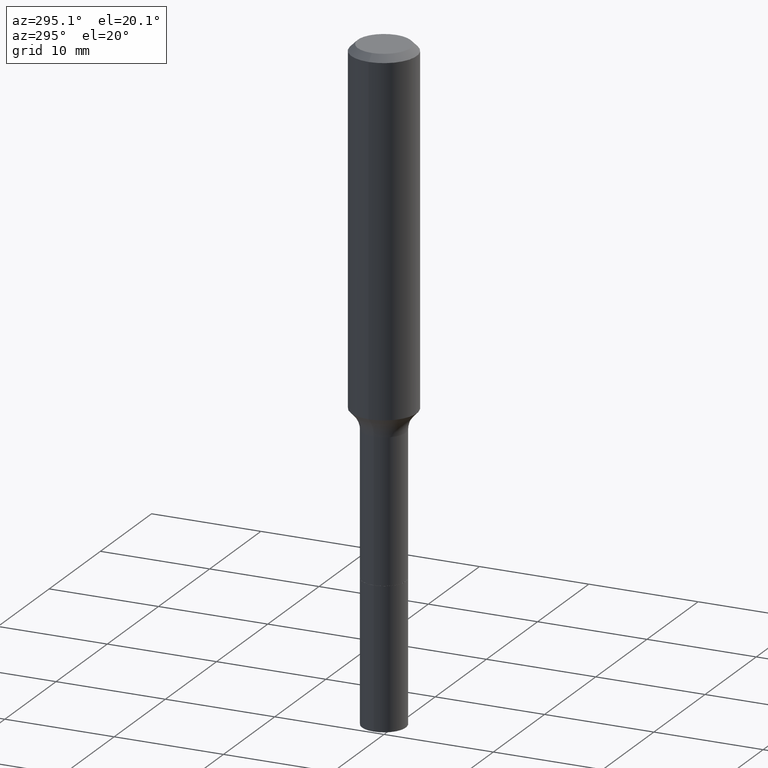
[diagram: clean part render]
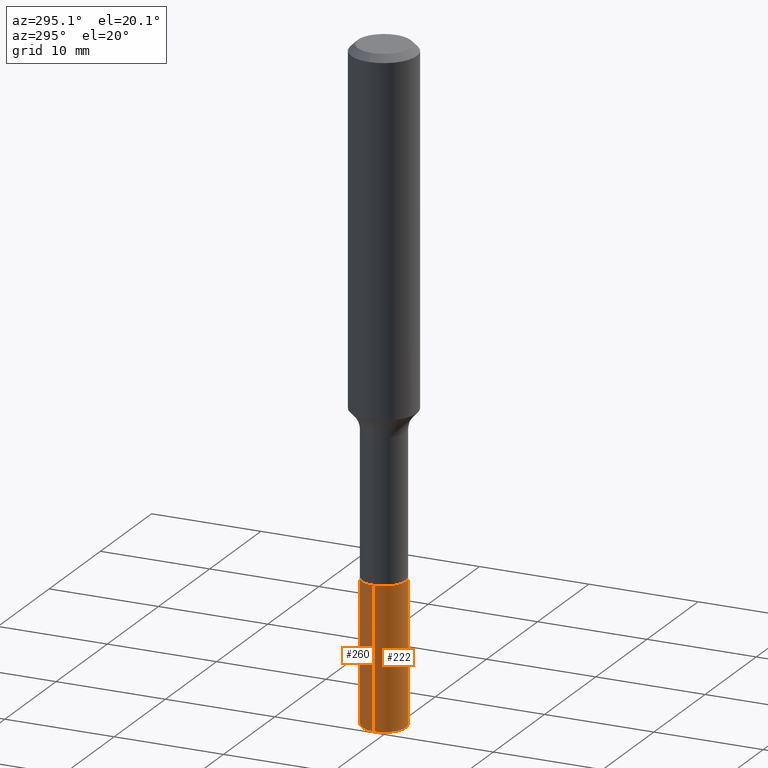
[diagram: same view with one multi-face feature highlighted, each face labeled with its STEP entity id]
A machine part, auxiliary view. The highlighted faces form ONE feature: a constant-radius fillet chain: 2 tangent blend faces with common blend radius 2.0003 mm. The faces share edges in the B-rep.
Their STEP definitions:
[1] entity #222 (Cylinder):
#7 = DIRECTION ( 'NONE',  ( -2.445468806185136877E-29, 3.491481338843145188E-15, 1.000000000000000000 ) ) ;
#42 = DIRECTION ( 'NONE',  ( -2.445468806185136597E-29, 3.491481338843145583E-15, 1.000000000000000000 ) ) ;
#48 = DIRECTION ( 'NONE',  ( -2.445468806185136877E-29, 3.491481338843145188E-15, 1.000000000000000000 ) ) ;
#50 = CARTESIAN_POINT ( 'NONE',  ( 0.07875000000000008382, -7.023813009350755138E-15, -1.854200000000000070 ) ) ;
#62 = EDGE_CURVE ( 'NONE', #372, #177, #405, .T. ) ;
#116 = DIRECTION ( 'NONE',  ( -2.445468806185136597E-29, 3.491481338843145583E-15, 1.000000000000000000 ) ) ;
#125 = LINE ( 'NONE', #50, #431 ) ;
#130 = AXIS2_PLACEMENT_3D ( 'NONE', #273, #116, #357 ) ;
#141 = ORIENTED_EDGE ( 'NONE', *, *, #62, .T. ) ;
#155 = FACE_OUTER_BOUND ( 'NONE', #221, .T. ) ;
#177 = VERTEX_POINT ( 'NONE', #303 ) ;
#207 = LINE ( 'NONE', #249, #270 ) ;
#213 = CARTESIAN_POINT ( 'NONE',  ( -0.07875000000000000056, -6.801188554138039935E-15, -1.854200000000000070 ) ) ;
#221 = EDGE_LOOP ( 'NONE', ( #379, #141, #376, #261 ) ) ;
#222 = ADVANCED_FACE ( 'NONE', ( #155 ), #350, .T. ) ;
#239 = DIRECTION ( 'NONE',  ( -2.445468806185136597E-29, 3.491481338843145583E-15, 1.000000000000000000 ) ) ;
#249 = CARTESIAN_POINT ( 'NONE',  ( -0.07875000000000008382, -5.914352294071881412E-15, -1.854200000000000070 ) ) ;
#261 = ORIENTED_EDGE ( 'NONE', *, *, #450, .F. ) ;
#270 = VECTOR ( 'NONE', #7, 39.37007874015748143 ) ;
#273 = CARTESIAN_POINT ( 'NONE',  ( 5.776686413970529753E-29, -8.247577218615279626E-15, -2.362200000000000077 ) ) ;
#283 = CARTESIAN_POINT ( 'NONE',  ( -0.07875000000000015321, -6.801188554138039146E-15, -2.362200000000000077 ) ) ;
#301 = VERTEX_POINT ( 'NONE', #489 ) ;
#303 = CARTESIAN_POINT ( 'NONE',  ( 0.07875000000000015321, -8.797485529483074550E-15, -2.362200000000000077 ) ) ;
#340 = CARTESIAN_POINT ( 'NONE',  ( 4.534388260428479994E-29, -6.473904698482961003E-15, -1.854200000000000070 ) ) ;
#350 = CYLINDRICAL_SURFACE ( 'NONE', #366, 0.07875000000000008382 ) ;
#354 = CARTESIAN_POINT ( 'NONE',  ( 4.534388260428479994E-29, -6.473904698482961003E-15, -1.854200000000000070 ) ) ;
#357 = DIRECTION ( 'NONE',  ( 1.000000000000000000, -6.982962677686272233E-15, 0.000000000000000000 ) ) ;
#365 = EDGE_CURVE ( 'NONE', #177, #301, #125, .T. ) ;
#366 = AXIS2_PLACEMENT_3D ( 'NONE', #340, #42, #507 ) ;
#372 = VERTEX_POINT ( 'NONE', #283 ) ;
#376 = ORIENTED_EDGE ( 'NONE', *, *, #365, .T. ) ;
#379 = ORIENTED_EDGE ( 'NONE', *, *, #386, .F. ) ;
#386 = EDGE_CURVE ( 'NONE', #372, #471, #207, .T. ) ;
#394 = DIRECTION ( 'NONE',  ( 1.000000000000000000, -6.982962677686261977E-15, 0.000000000000000000 ) ) ;
#404 = AXIS2_PLACEMENT_3D ( 'NONE', #354, #239, #394 ) ;
#405 = CIRCLE ( 'NONE', #130, 0.07875000000000015321 ) ;
#412 = CIRCLE ( 'NONE', #404, 0.07875000000000000056 ) ;
#431 = VECTOR ( 'NONE', #48, 39.37007874015748143 ) ;
#450 = EDGE_CURVE ( 'NONE', #471, #301, #412, .T. ) ;
#471 = VERTEX_POINT ( 'NONE', #213 ) ;
#489 = CARTESIAN_POINT ( 'NONE',  ( 0.07875000000000000056, -7.023813009350754349E-15, -1.854200000000000070 ) ) ;
#507 = DIRECTION ( 'NONE',  ( 1.000000000000000000, -6.982962677686267499E-15, 0.000000000000000000 ) ) ;
[2] entity #260 (Cylinder):
#7 = DIRECTION ( 'NONE',  ( -2.445468806185136877E-29, 3.491481338843145188E-15, 1.000000000000000000 ) ) ;
#12 = CARTESIAN_POINT ( 'NONE',  ( 5.776686413970529753E-29, -8.247577218615279626E-15, -2.362200000000000077 ) ) ;
#48 = DIRECTION ( 'NONE',  ( -2.445468806185136877E-29, 3.491481338843145188E-15, 1.000000000000000000 ) ) ;
#50 = CARTESIAN_POINT ( 'NONE',  ( 0.07875000000000008382, -7.023813009350755138E-15, -1.854200000000000070 ) ) ;
#60 = ORIENTED_EDGE ( 'NONE', *, *, #386, .T. ) ;
#87 = DIRECTION ( 'NONE',  ( 1.000000000000000000, -6.982962677686261977E-15, 0.000000000000000000 ) ) ;
#104 = EDGE_CURVE ( 'NONE', #177, #372, #200, .T. ) ;
#119 = EDGE_LOOP ( 'NONE', ( #501, #60, #238, #300 ) ) ;
#125 = LINE ( 'NONE', #50, #431 ) ;
#177 = VERTEX_POINT ( 'NONE', #303 ) ;
#200 = CIRCLE ( 'NONE', #296, 0.07875000000000015321 ) ;
#207 = LINE ( 'NONE', #249, #270 ) ;
#208 = DIRECTION ( 'NONE',  ( -2.445468806185136597E-29, 3.491481338843145583E-15, 1.000000000000000000 ) ) ;
#211 = DIRECTION ( 'NONE',  ( 1.000000000000000000, -6.982962677686267499E-15, 0.000000000000000000 ) ) ;
#213 = CARTESIAN_POINT ( 'NONE',  ( -0.07875000000000000056, -6.801188554138039935E-15, -1.854200000000000070 ) ) ;
#230 = CARTESIAN_POINT ( 'NONE',  ( 4.534388260428479994E-29, -6.473904698482961003E-15, -1.854200000000000070 ) ) ;
#238 = ORIENTED_EDGE ( 'NONE', *, *, #413, .F. ) ;
#249 = CARTESIAN_POINT ( 'NONE',  ( -0.07875000000000008382, -5.914352294071881412E-15, -1.854200000000000070 ) ) ;
#260 = ADVANCED_FACE ( 'NONE', ( #383 ), #342, .T. ) ;
#270 = VECTOR ( 'NONE', #7, 39.37007874015748143 ) ;
#283 = CARTESIAN_POINT ( 'NONE',  ( -0.07875000000000015321, -6.801188554138039146E-15, -2.362200000000000077 ) ) ;
#296 = AXIS2_PLACEMENT_3D ( 'NONE', #12, #208, #490 ) ;
#300 = ORIENTED_EDGE ( 'NONE', *, *, #365, .F. ) ;
#301 = VERTEX_POINT ( 'NONE', #489 ) ;
#303 = CARTESIAN_POINT ( 'NONE',  ( 0.07875000000000015321, -8.797485529483074550E-15, -2.362200000000000077 ) ) ;
#308 = AXIS2_PLACEMENT_3D ( 'NONE', #441, #403, #87 ) ;
#326 = AXIS2_PLACEMENT_3D ( 'NONE', #230, #384, #211 ) ;
#342 = CYLINDRICAL_SURFACE ( 'NONE', #326, 0.07875000000000008382 ) ;
#365 = EDGE_CURVE ( 'NONE', #177, #301, #125, .T. ) ;
#372 = VERTEX_POINT ( 'NONE', #283 ) ;
#383 = FACE_OUTER_BOUND ( 'NONE', #119, .T. ) ;
#384 = DIRECTION ( 'NONE',  ( -2.445468806185136597E-29, 3.491481338843145583E-15, 1.000000000000000000 ) ) ;
#386 = EDGE_CURVE ( 'NONE', #372, #471, #207, .T. ) ;
#398 = CIRCLE ( 'NONE', #308, 0.07875000000000000056 ) ;
#403 = DIRECTION ( 'NONE',  ( -2.445468806185136597E-29, 3.491481338843145583E-15, 1.000000000000000000 ) ) ;
#413 = EDGE_CURVE ( 'NONE', #301, #471, #398, .T. ) ;
#431 = VECTOR ( 'NONE', #48, 39.37007874015748143 ) ;
#441 = CARTESIAN_POINT ( 'NONE',  ( 4.534388260428479994E-29, -6.473904698482961003E-15, -1.854200000000000070 ) ) ;
#471 = VERTEX_POINT ( 'NONE', #213 ) ;
#489 = CARTESIAN_POINT ( 'NONE',  ( 0.07875000000000000056, -7.023813009350754349E-15, -1.854200000000000070 ) ) ;
#490 = DIRECTION ( 'NONE',  ( 1.000000000000000000, -6.982962677686272233E-15, 0.000000000000000000 ) ) ;
#501 = ORIENTED_EDGE ( 'NONE', *, *, #104, .T. ) ;